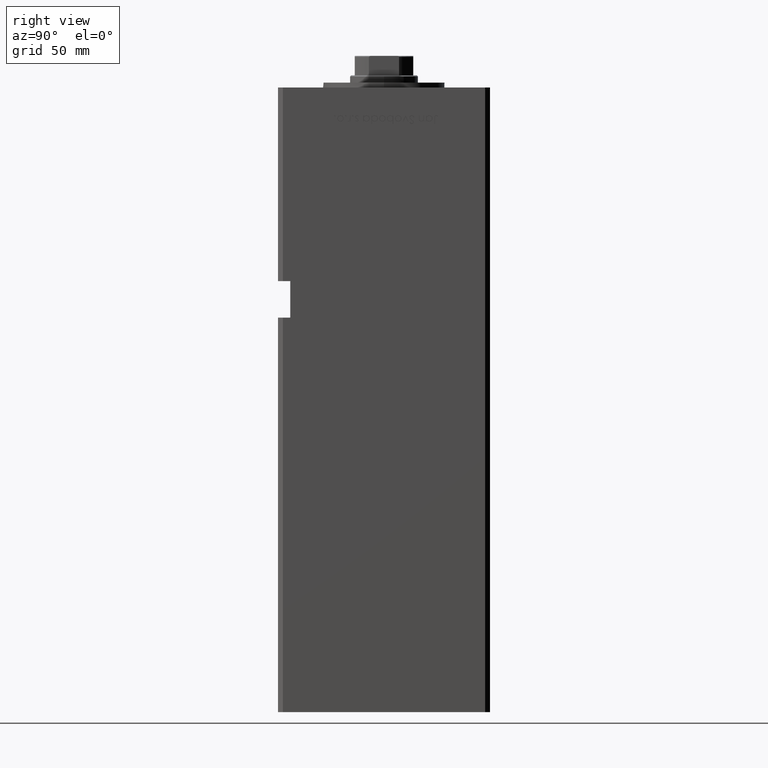
[diagram: clean part render]
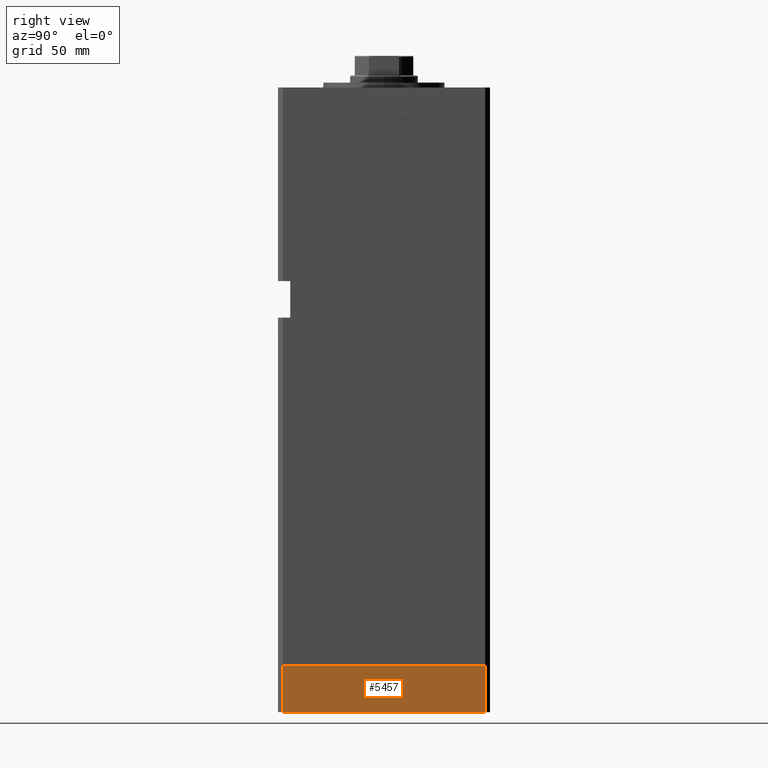
[diagram: same view with one face highlighted and labeled with its STEP entity id]
A machine part, right view. The second image highlights one B-rep face of the part: STEP entity #5457.
In plain terms, the highlighted planar face has unit normal (1, 0, 0).
Its self-contained STEP definition (entity closure, byte-faithful):
#2197 = CARTESIAN_POINT ( 'NONE',  ( -50.00000000000000000, -41.50000000000000000, 0.000000000000000000 ) ) ;
#2527 = CARTESIAN_POINT ( 'NONE',  ( -50.00000000000000711, 41.49999999999995026, -19.00000000000000000 ) ) ;
#3522 = DIRECTION ( 'NONE',  ( 0.000000000000000000, 0.000000000000000000, 1.000000000000000000 ) ) ;
#5457 = ADVANCED_FACE ( 'NONE', ( #51782 ), #47218, .T. ) ;
#7089 = DIRECTION ( 'NONE',  ( -1.000000000000000000, -8.360113137237628665E-17, 0.000000000000000000 ) ) ;
#10615 = ORIENTED_EDGE ( 'NONE', *, *, #42586, .F. ) ;
#15017 = ORIENTED_EDGE ( 'NONE', *, *, #21416, .F. ) ;
#15962 = EDGE_LOOP ( 'NONE', ( #10615, #15017, #37498, #15967 ) ) ;
#15967 = ORIENTED_EDGE ( 'NONE', *, *, #34994, .T. ) ;
#18109 = VECTOR ( 'NONE', #27384, 1000.000000000000000 ) ;
#19045 = LINE ( 'NONE', #30372, #18109 ) ;
#21416 = EDGE_CURVE ( 'NONE', #32510, #24785, #48995, .T. ) ;
#21941 = VECTOR ( 'NONE', #30168, 1000.000000000000000 ) ;
#23979 = CARTESIAN_POINT ( 'NONE',  ( -50.00000000000000711, 41.49999999999995026, -19.00000000000000000 ) ) ;
#24785 = VERTEX_POINT ( 'NONE', #37082 ) ;
#26306 = CARTESIAN_POINT ( 'NONE',  ( -50.00000000000000000, -41.50000000000000000, -19.00000000000000000 ) ) ;
#27384 = DIRECTION ( 'NONE',  ( 0.000000000000000000, 0.000000000000000000, 1.000000000000000000 ) ) ;
#30168 = DIRECTION ( 'NONE',  ( 8.360113137237628665E-17, -1.000000000000000000, 0.000000000000000000 ) ) ;
#30372 = CARTESIAN_POINT ( 'NONE',  ( -50.00000000000000000, -41.50000000000000000, -19.00000000000000000 ) ) ;
#32510 = VERTEX_POINT ( 'NONE', #37455 ) ;
#33389 = VERTEX_POINT ( 'NONE', #2197 ) ;
#34994 = EDGE_CURVE ( 'NONE', #51237, #33389, #19045, .T. ) ;
#35383 = DIRECTION ( 'NONE',  ( 8.360113137237628665E-17, -1.000000000000000000, 0.000000000000000000 ) ) ;
#37082 = CARTESIAN_POINT ( 'NONE',  ( -50.00000000000000711, 41.49999999999995026, 0.000000000000000000 ) ) ;
#37455 = CARTESIAN_POINT ( 'NONE',  ( -50.00000000000000711, 41.49999999999995026, -19.00000000000000000 ) ) ;
#37498 = ORIENTED_EDGE ( 'NONE', *, *, #53013, .T. ) ;
#40328 = CARTESIAN_POINT ( 'NONE',  ( -50.00000000000000711, 41.49999999999995026, 0.000000000000000000 ) ) ;
#42586 = EDGE_CURVE ( 'NONE', #24785, #33389, #52190, .T. ) ;
#42789 = LINE ( 'NONE', #50618, #21941 ) ;
#43115 = VECTOR ( 'NONE', #52704, 1000.000000000000000 ) ;
#47218 = PLANE ( 'NONE',  #50351 ) ;
#48995 = LINE ( 'NONE', #23979, #50725 ) ;
#50351 = AXIS2_PLACEMENT_3D ( 'NONE', #2527, #7089, #35383 ) ;
#50618 = CARTESIAN_POINT ( 'NONE',  ( -50.00000000000000711, 41.49999999999995026, -19.00000000000000000 ) ) ;
#50725 = VECTOR ( 'NONE', #3522, 1000.000000000000000 ) ;
#51237 = VERTEX_POINT ( 'NONE', #26306 ) ;
#51782 = FACE_OUTER_BOUND ( 'NONE', #15962, .T. ) ;
#52190 = LINE ( 'NONE', #40328, #43115 ) ;
#52704 = DIRECTION ( 'NONE',  ( 8.360113137237628665E-17, -1.000000000000000000, 0.000000000000000000 ) ) ;
#53013 = EDGE_CURVE ( 'NONE', #32510, #51237, #42789, .T. ) ;